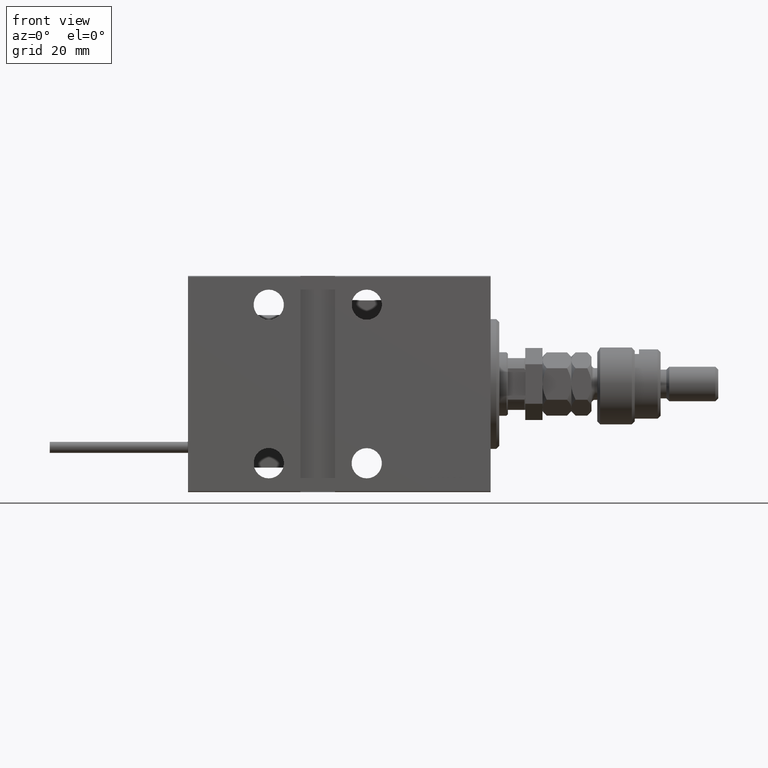
[diagram: clean part render]
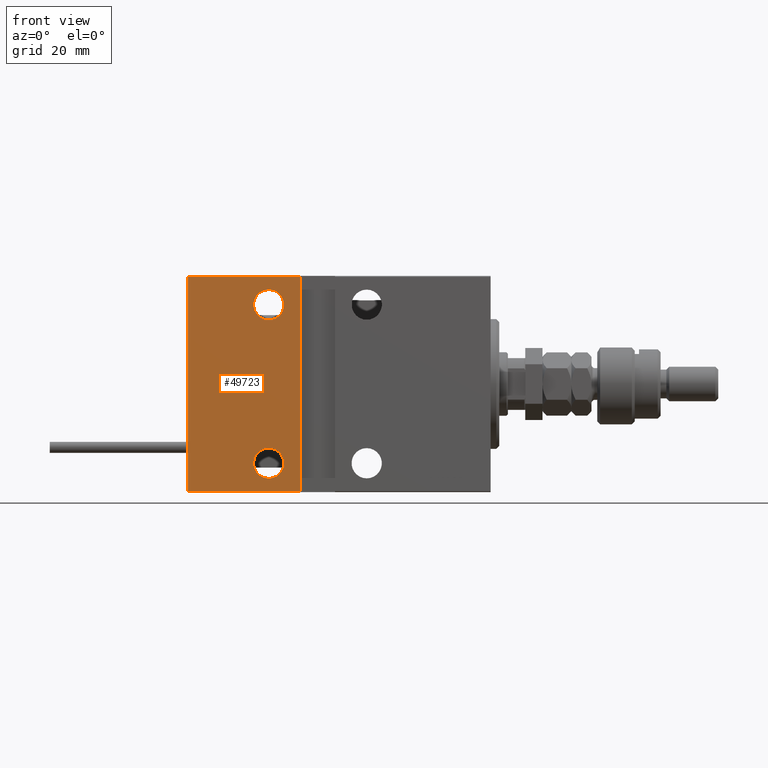
[diagram: same view with one face highlighted and labeled with its STEP entity id]
A machine part, front view. The second image highlights one B-rep face of the part: STEP entity #49723.
In plain terms, the highlighted planar face has unit normal (-0, 1, -0).
Its self-contained STEP definition (entity closure, byte-faithful):
#50 = ORIENTED_EDGE ( 'NONE', *, *, #18505, .F. ) ;
#389 = VERTEX_POINT ( 'NONE', #7173 ) ;
#708 = FACE_BOUND ( 'NONE', #25835, .T. ) ;
#1378 = AXIS2_PLACEMENT_3D ( 'NONE', #4460, #44907, #48912 ) ;
#1843 = DIRECTION ( 'NONE',  ( 0.000000000000000000, -1.000000000000000000, -9.251858538542970348E-17 ) ) ;
#2255 = DIRECTION ( 'NONE',  ( 1.000000000000000000, 0.000000000000000000, 0.000000000000000000 ) ) ;
#3944 = ORIENTED_EDGE ( 'NONE', *, *, #34388, .T. ) ;
#4216 = VERTEX_POINT ( 'NONE', #20244 ) ;
#4460 = CARTESIAN_POINT ( 'NONE',  ( 105.0000000000000000, 27.50000000000000355, -37.50000000000000711 ) ) ;
#5628 = CARTESIAN_POINT ( 'NONE',  ( 77.00000000000001421, 27.50000000000000355, -27.49999999999998579 ) ) ;
#7173 = CARTESIAN_POINT ( 'NONE',  ( 66.00000000000000000, 27.49999999999999645, 37.20000000000005969 ) ) ;
#7548 = EDGE_CURVE ( 'NONE', #389, #34129, #26111, .T. ) ;
#7764 = CIRCLE ( 'NONE', #15424, 5.250000000000000888 ) ;
#8704 = EDGE_CURVE ( 'NONE', #4216, #25551, #9313, .T. ) ;
#9313 = CIRCLE ( 'NONE', #13593, 5.250000000000004441 ) ;
#9881 = ORIENTED_EDGE ( 'NONE', *, *, #17603, .F. ) ;
#10384 = CARTESIAN_POINT ( 'NONE',  ( 66.00000000000000000, 27.50000000000000355, -37.50000000000001421 ) ) ;
#10423 = DIRECTION ( 'NONE',  ( 0.000000000000000000, 0.000000000000000000, -1.000000000000000000 ) ) ;
#11179 = LINE ( 'NONE', #48397, #19780 ) ;
#11473 = CARTESIAN_POINT ( 'NONE',  ( 77.00000000000001421, 27.49999999999999645, 22.25000000000001776 ) ) ;
#11904 = EDGE_CURVE ( 'NONE', #21284, #15268, #35949, .T. ) ;
#13098 = DIRECTION ( 'NONE',  ( 0.000000000000000000, 0.000000000000000000, -1.000000000000000000 ) ) ;
#13593 = AXIS2_PLACEMENT_3D ( 'NONE', #40807, #24981, #20690 ) ;
#15268 = VERTEX_POINT ( 'NONE', #37222 ) ;
#15380 = CIRCLE ( 'NONE', #50519, 5.250000000000004441 ) ;
#15424 = AXIS2_PLACEMENT_3D ( 'NONE', #5628, #29434, #29715 ) ;
#17014 = FACE_OUTER_BOUND ( 'NONE', #47033, .T. ) ;
#17603 = EDGE_CURVE ( 'NONE', #389, #48156, #51104, .T. ) ;
#17800 = CARTESIAN_POINT ( 'NONE',  ( 105.0000000000000000, 27.49999999999999645, 37.20000000000005258 ) ) ;
#17819 = VECTOR ( 'NONE', #2255, 1000.000000000000000 ) ;
#18505 = EDGE_CURVE ( 'NONE', #41998, #34129, #11179, .T. ) ;
#19780 = VECTOR ( 'NONE', #47608, 1000.000000000000000 ) ;
#20244 = CARTESIAN_POINT ( 'NONE',  ( 77.00000000000001421, 27.49999999999999645, 32.75000000000002132 ) ) ;
#20690 = DIRECTION ( 'NONE',  ( 0.000000000000000000, 0.000000000000000000, -1.000000000000000000 ) ) ;
#21284 = VERTEX_POINT ( 'NONE', #30590 ) ;
#22580 = CARTESIAN_POINT ( 'NONE',  ( 66.00000000000000000, 27.50000000000000355, -37.20000000000002416 ) ) ;
#24282 = ORIENTED_EDGE ( 'NONE', *, *, #33520, .T. ) ;
#24981 = DIRECTION ( 'NONE',  ( 0.000000000000000000, -1.000000000000000000, -9.251858538542970348E-17 ) ) ;
#25113 = CARTESIAN_POINT ( 'NONE',  ( 105.0000000000000000, 27.50000000000000355, -37.20000000000002416 ) ) ;
#25551 = VERTEX_POINT ( 'NONE', #11473 ) ;
#25835 = EDGE_LOOP ( 'NONE', ( #3944, #28562 ) ) ;
#26111 = LINE ( 'NONE', #17800, #17819 ) ;
#26712 = DIRECTION ( 'NONE',  ( -0.000000000000000000, 9.251858538542970348E-17, -1.000000000000000000 ) ) ;
#26906 = CARTESIAN_POINT ( 'NONE',  ( 105.0000000000000000, 27.50000000000000355, -37.20000000000002416 ) ) ;
#28562 = ORIENTED_EDGE ( 'NONE', *, *, #11904, .T. ) ;
#29434 = DIRECTION ( 'NONE',  ( 0.000000000000000000, -1.000000000000000000, -9.251858538542970348E-17 ) ) ;
#29715 = DIRECTION ( 'NONE',  ( 0.000000000000000000, 0.000000000000000000, -1.000000000000000000 ) ) ;
#30590 = CARTESIAN_POINT ( 'NONE',  ( 77.00000000000001421, 27.50000000000000355, -32.74999999999998579 ) ) ;
#31828 = DIRECTION ( 'NONE',  ( 0.000000000000000000, -1.000000000000000000, -9.251858538542970348E-17 ) ) ;
#32576 = PLANE ( 'NONE',  #1378 ) ;
#32762 = EDGE_CURVE ( 'NONE', #41998, #48156, #46238, .T. ) ;
#33119 = FACE_BOUND ( 'NONE', #40057, .T. ) ;
#33520 = EDGE_CURVE ( 'NONE', #25551, #4216, #15380, .T. ) ;
#34129 = VERTEX_POINT ( 'NONE', #38165 ) ;
#34388 = EDGE_CURVE ( 'NONE', #15268, #21284, #7764, .T. ) ;
#35320 = CARTESIAN_POINT ( 'NONE',  ( 77.00000000000001421, 27.50000000000000355, -27.49999999999998579 ) ) ;
#35949 = CIRCLE ( 'NONE', #46217, 5.250000000000000888 ) ;
#36483 = ORIENTED_EDGE ( 'NONE', *, *, #32762, .T. ) ;
#37222 = CARTESIAN_POINT ( 'NONE',  ( 77.00000000000001421, 27.50000000000000355, -22.24999999999998224 ) ) ;
#38165 = CARTESIAN_POINT ( 'NONE',  ( 105.0000000000000000, 27.49999999999999645, 37.20000000000005258 ) ) ;
#38494 = VECTOR ( 'NONE', #38730, 1000.000000000000000 ) ;
#38730 = DIRECTION ( 'NONE',  ( -1.000000000000000000, 0.000000000000000000, 0.000000000000000000 ) ) ;
#40057 = EDGE_LOOP ( 'NONE', ( #41946, #24282 ) ) ;
#40807 = CARTESIAN_POINT ( 'NONE',  ( 77.00000000000001421, 27.49999999999999645, 27.50000000000002132 ) ) ;
#41190 = VECTOR ( 'NONE', #26712, 1000.000000000000000 ) ;
#41946 = ORIENTED_EDGE ( 'NONE', *, *, #8704, .T. ) ;
#41998 = VERTEX_POINT ( 'NONE', #25113 ) ;
#44907 = DIRECTION ( 'NONE',  ( 0.000000000000000000, -1.000000000000000000, -9.251858538542970348E-17 ) ) ;
#46217 = AXIS2_PLACEMENT_3D ( 'NONE', #35320, #31828, #10423 ) ;
#46238 = LINE ( 'NONE', #26906, #38494 ) ;
#47033 = EDGE_LOOP ( 'NONE', ( #50, #36483, #9881, #52096 ) ) ;
#47608 = DIRECTION ( 'NONE',  ( 0.000000000000000000, -9.251858538542970348E-17, 1.000000000000000000 ) ) ;
#48156 = VERTEX_POINT ( 'NONE', #22580 ) ;
#48397 = CARTESIAN_POINT ( 'NONE',  ( 105.0000000000000000, 27.50000000000000355, -37.50000000000000711 ) ) ;
#48912 = DIRECTION ( 'NONE',  ( 0.000000000000000000, 9.251858538542970348E-17, -1.000000000000000000 ) ) ;
#49723 = ADVANCED_FACE ( 'NONE', ( #708, #33119, #17014 ), #32576, .F. ) ;
#49791 = CARTESIAN_POINT ( 'NONE',  ( 77.00000000000001421, 27.49999999999999645, 27.50000000000002132 ) ) ;
#50519 = AXIS2_PLACEMENT_3D ( 'NONE', #49791, #1843, #13098 ) ;
#51104 = LINE ( 'NONE', #10384, #41190 ) ;
#52096 = ORIENTED_EDGE ( 'NONE', *, *, #7548, .T. ) ;